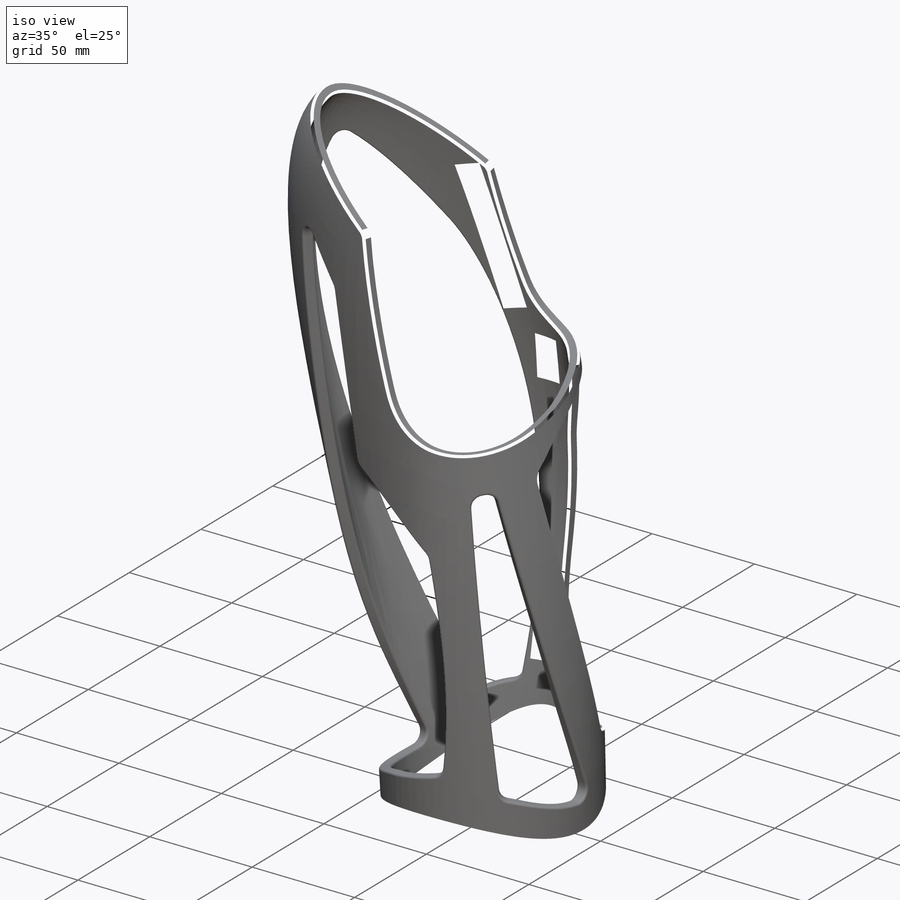
[diagram: iso view]
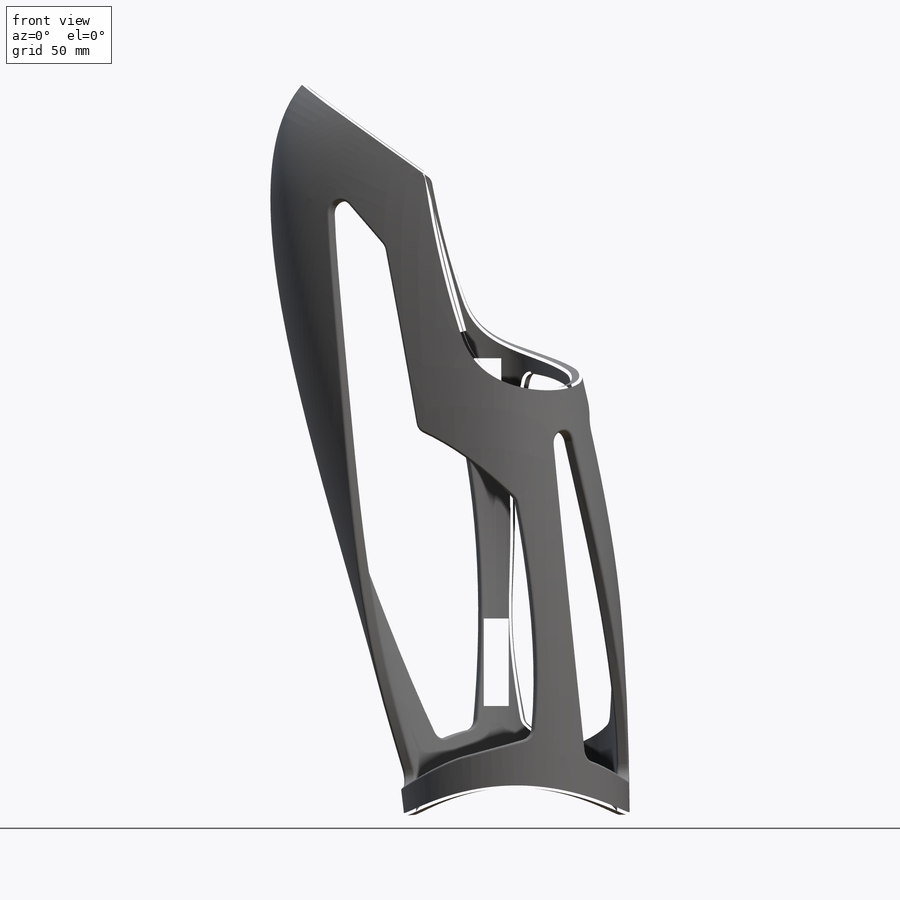
[diagram: front view]
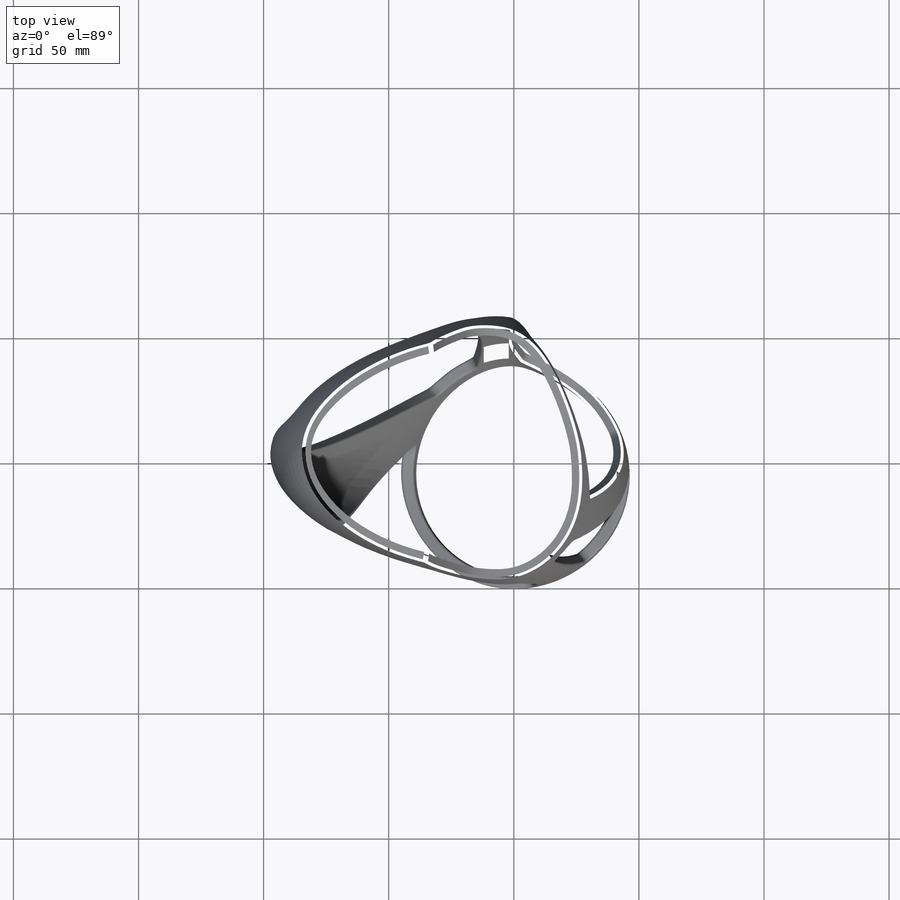
[diagram: top view]
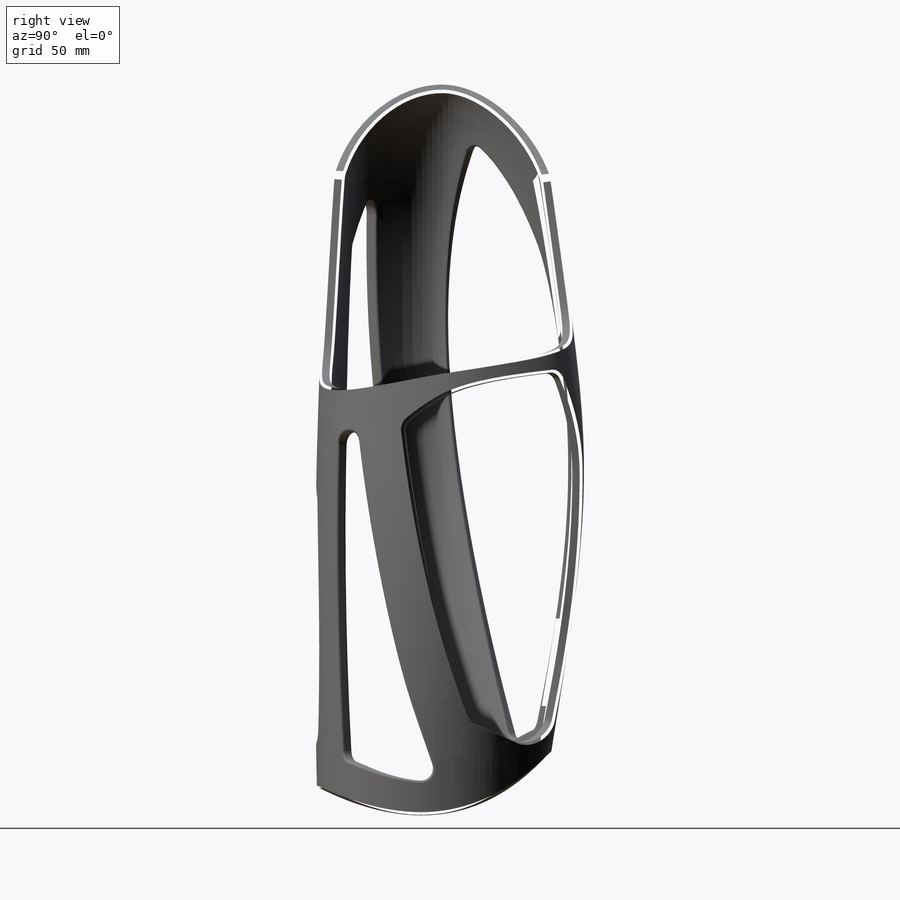
[diagram: right view]
SOLIDWORKS PART (.sldprt)
format: sldprt  version: not decoded by parser v0  size: 2,286,592 bytes
history: native  units: mm
features: sketch x23, fillet x10, plane x7, material x1, extrude x1 (+8 scaffold rows collapsed)
feature tree (50):
  scaffold x8  (default folders/planes/origin — collapsed)
  material  "Material <nicht festgelegt>"
  plane  "Vorne"
  plane  "Oben"
  plane  "Rechts"
  sketch  "Skizze44"
  plane  "Ebene26"
  sketch  "Skizze45"  dims[D1=80.0mm]
  sketch  "Skizze46"
  plane  "Ebene27"
  sketch  "Skizze47"  dims[D1=80.0mm D2=20.0mm]
  sketch  "Skizze49"
  sketch  "Skizze50"
  sketch  "Skizze51"  dims[D1=0.0mm]
  sketch  "Skizze52"  dims[D1=76.0mm]
  sketch  "Skizze62"
  sketch  "Skizze63"
  sketch  "Skizze65"
  sketch  "Skizze66"
  sketch  "Skizze69"
  sketch  "Skizze70"
  sketch  "Skizze71"
  sketch  "Skizze72"  dims[D1=56.0mm D2=56.0mm]
  plane  "Ebene28"  Offset=54mm
  sketch  "Skizze92"  dims[D1=~70.619815mm D2=~17.016754mm]
  sketch  "Skizze94"
  sketch  "Skizze84"  dims[D1=77.0mm]
  sketch  "Skizze90"
  sketch  "Skizze89"  dims[D1=10.0mm]
  sketch  "Skizze96"  dims[c1.D1=10.0mm c2.D1=5.0mm c3.D1=0.0mm]
  fillet  "Verrundung1"  Radius=5mm
  fillet  "Verrundung2"  Radius=1mm
  fillet  "Verrundung3"  Radius=5mm
  fillet  "Verrundung4"  Radius=1mm
  fillet  "Verrundung5"  Radius=5mm
  fillet  "Verrundung6"  Radius=1mm
  fillet  "Verrundung8"  Radius=5mm
  fillet  "Verrundung9"  Radius=1mm
  fillet  "Verrundung10"  Radius=5mm
  fillet  "Verrundung11"  Radius=1mm
  plane  "Ebene29"  Offset=36mm
  sketch  "Skizze95"  dims[c1.D13=120.0mm c1.D1=~175.129672mm c2.D1=15.0deg c2.D2=23.0mm c2.D3=65.0mm c2.D4=~44.878144mm c3.D4=12.0deg c3.D5=45.0mm c3.D6=10.0mm c3.D7=2.0mm c3.D8=10.0mm c3.D9=175.0mm c3.D10=35.0mm c3.D11=20.0mm c3.D12=2.5mm c3.D2=35.0mm c3.D3=3.0mm c4.D4=~175.845119mm c5.D4=15.0deg c5.D2=60.0mm c5.D3=19.0mm c5.D5=65.0mm c5.D6=11.0mm c5.D11=5.0mm c5.D12=91.0mm c5.D13=20.0mm c5.D14=11.0mm]
  extrude  "Aufsatz-Linear austragen1"  [1 undecoded]
decode coverage: 20 of 34 modeling features carry decoded parameters
note: ~ marks probable driven/reference dimensions
note: 1 parameter value undecoded
note: suppression state not decoded; provenance and decode notes live in map.json
